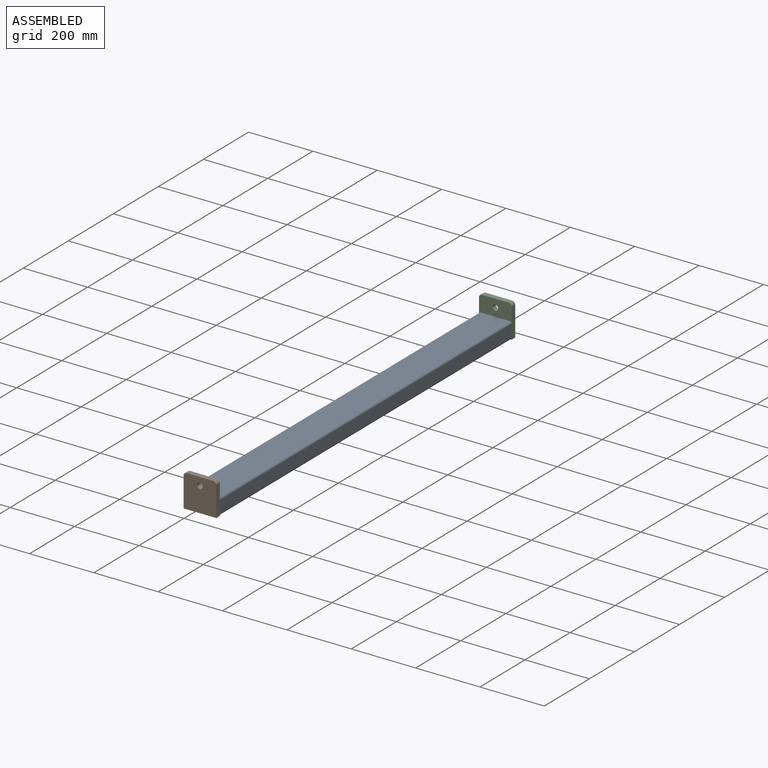
[diagram: assembled view]
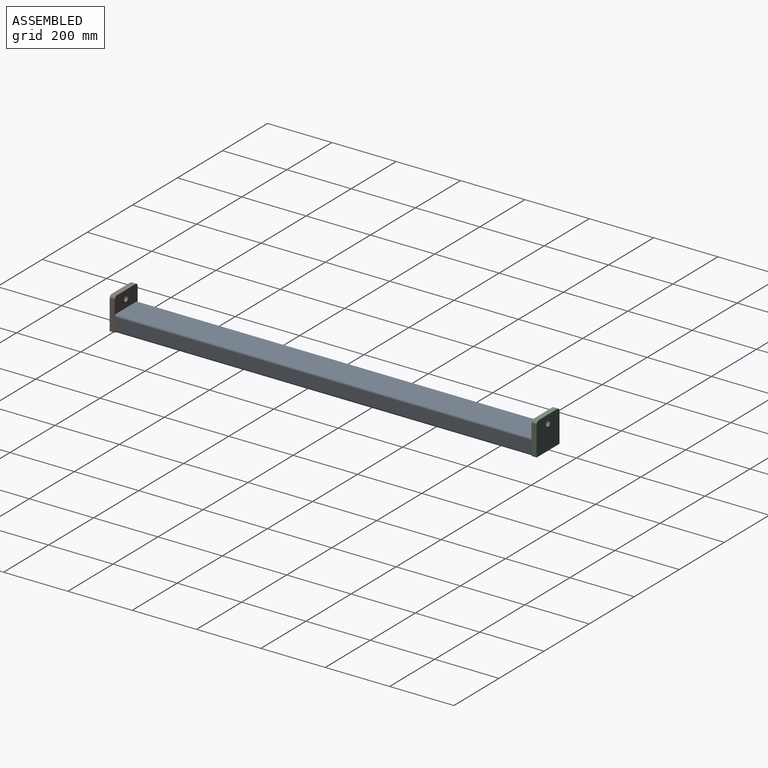
[diagram: assembled view, second angle]
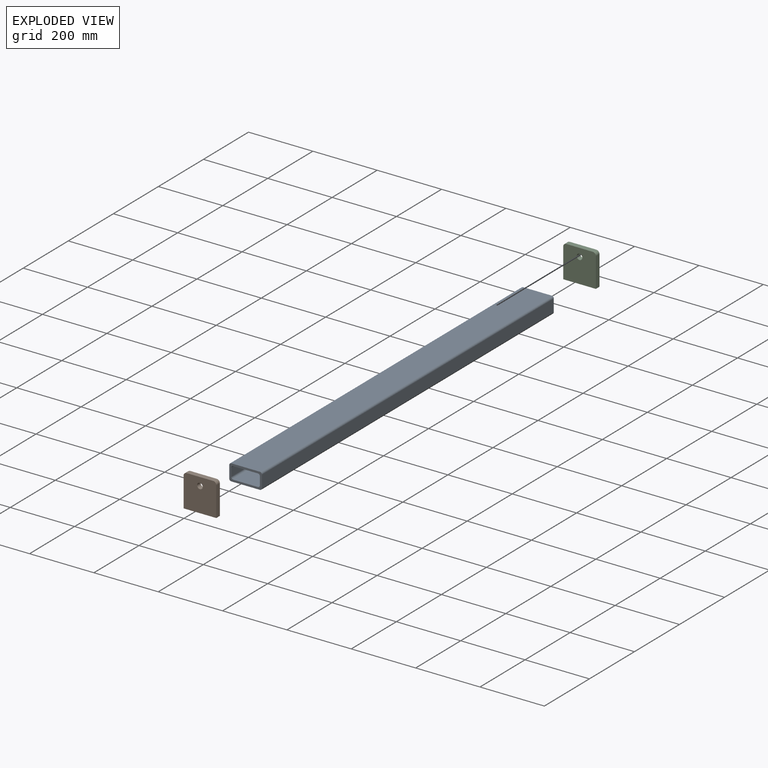
[diagram: exploded view]
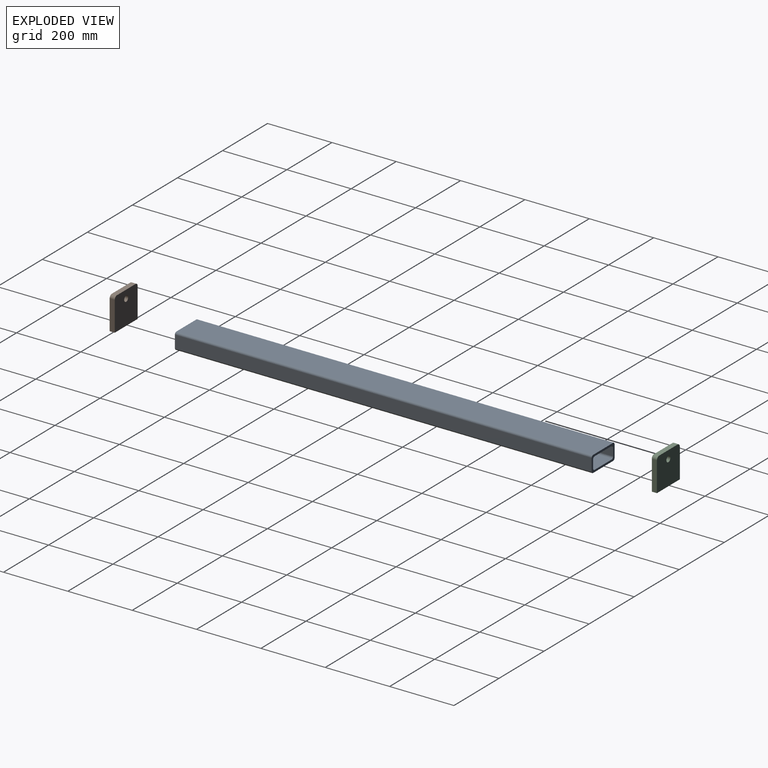
[diagram: exploded view, second angle]
ASSEMBLY  parts=3 mates=2
PART A: 18 faces, bbox 1295.4x101.6x50.8 mm
  f0: plane 1295.4x76.2mm, normal (0,0,-1), area 98709.5mm2, adj f1,f7,f8,f9
  f1: cylinder r=6.35mm len=1295.4mm, axis (1,0,0), area 12921mm2, adj f0,f2,f8,f9
  f2: plane 1295.4x25.4mm, normal (0,-1,0), area 32903.2mm2, adj f1,f3,f8,f9
  f3: cylinder r=6.35mm len=1295.4mm, axis (1,0,0), area 12921mm2, adj f2,f4,f8,f9
  f4: plane 1295.4x76.2mm, normal (0,0,1), area 98709.5mm2, adj f3,f5,f8,f9
  f5: cylinder r=6.35mm len=1295.4mm, axis (1,0,0), area 12921mm2, adj f4,f6,f8,f9
  f6: plane 1295.4x25.4mm, normal (0,1,0), area 32903.2mm2, adj f5,f7,f8,f9
  f7: cylinder r=6.35mm len=1295.4mm, axis (1,0,0), area 12921mm2, adj f0,f6,f8,f9
  f8: plane 101.6x50.8mm, normal (-1,0,0), area 1774.2mm2, adj f0,f1,f2,f3,f4,f5,f6,f7
  f9: plane 101.6x50.8mm, normal (1,0,0), area 1774.2mm2, adj f0,f1,f2,f3,f4,f5,f6,f7
  f10: cylinder r=6.35mm len=1295.4mm, axis (1,0,0), area 12921mm2, adj f8,f9,f11,f17
  f11: plane 1295.4x38.1mm, normal (0,1,0), area 49354.7mm2, adj f8,f9,f10,f12
  f12: cylinder r=6.35mm len=1295.4mm, axis (1,0,0), area 12921mm2, adj f8,f9,f11,f13
  f13: plane 1295.4x88.9mm, normal (0,0,1), area 115161.1mm2, adj f8,f9,f12,f14
  f14: cylinder r=6.35mm len=1295.4mm, axis (1,0,0), area 12921mm2, adj f8,f9,f13,f15
  f15: plane 1295.4x38.1mm, normal (0,-1,0), area 49354.7mm2, adj f8,f9,f14,f16
  f16: cylinder r=6.35mm len=1295.4mm, axis (1,0,0), area 12921mm2, adj f8,f9,f15,f17
  f17: plane 1295.4x88.9mm, normal (0,0,-1), area 115161.1mm2, adj f8,f9,f10,f16
PART B: 9 faces, bbox 101.6x15.9x101.6 mm
  f0: cylinder r=9.53mm len=15.88mm, axis (0,1,0), area 237.5mm2, adj f1,f6,f7,f8
  f1: plane 92.08x15.88mm, normal (-1,0,0), area 1461.7mm2, adj f0,f2,f7,f8
  f2: plane 101.6x15.88mm, normal (0,0,-1), area 1612.9mm2, adj f1,f3,f7,f8
  f3: plane 92.08x15.88mm, normal (1,0,0), area 1461.7mm2, adj f2,f4,f7,f8
  f4: cylinder r=9.53mm len=15.88mm, axis (0,1,0), area 237.5mm2, adj f3,f6,f7,f8
  f5: cylinder r=8.73mm len=17.46mm, axis (0,1,0), area 870.9mm2, adj f7,f8
  f6: plane 82.55x15.88mm, normal (0,0,1), area 1310.5mm2, adj f0,f4,f7,f8
  f7: plane 101.6x101.6mm, normal (0,-1,0), area 10044.1mm2, adj f0,f1,f2,f3,f4,f5,f6
  f8: plane 101.6x101.6mm, normal (0,1,0), area 10044.1mm2, adj f0,f1,f2,f3,f4,f5,f6
PART C: same geometry as B
PLACE A rot(axis=(0.71,-0.71,0),180deg) t=(40.13,29.26,-28.18)mm
PLACE B t=(40.13,29.26,-2.78)mm
PLACE C t=(40.13,1340.53,-2.78)mm
MATE fastened A.f9 <-> B.f8  axis (0,-1,0) through (40.13,29.26,-53.58)mm
MATE fastened C.f7 <-> A.f8  axis (0,-1,0) through (40.13,1324.66,-53.58)mm
